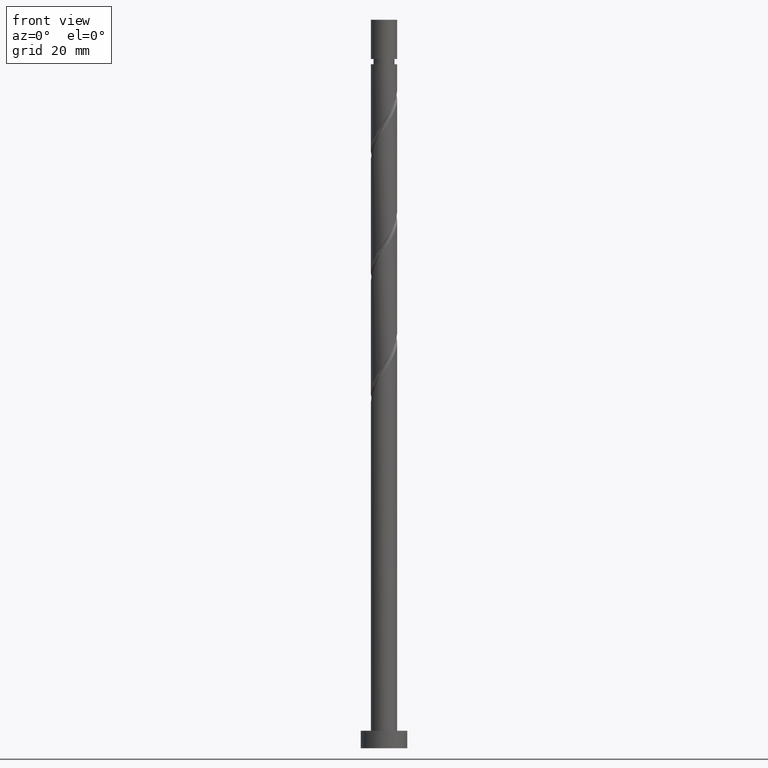
[diagram: clean part render]
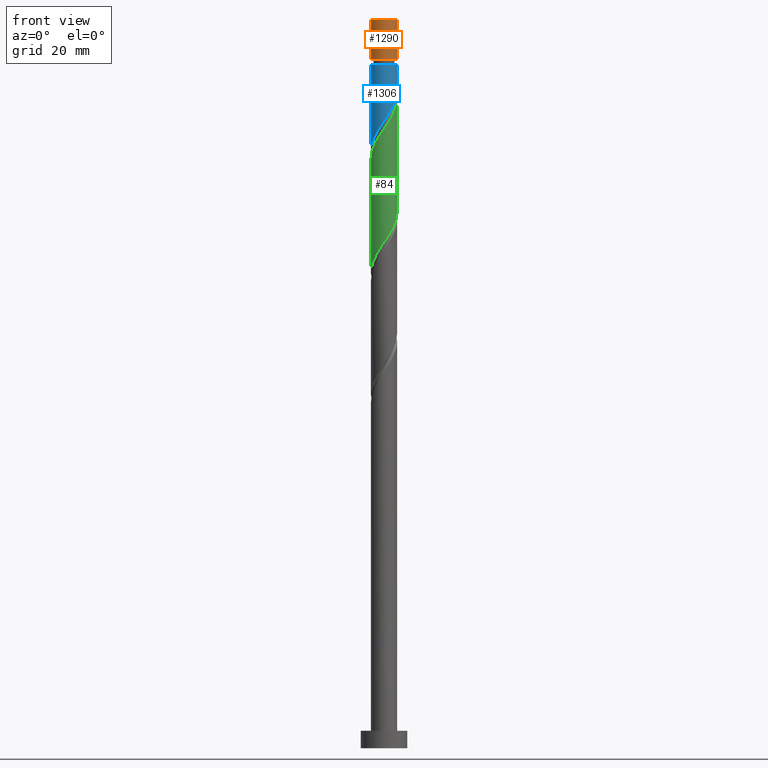
[diagram: same view with three faces highlighted in distinct colors, each labeled with its STEP entity id]
A machine part, front view with three faces highlighted in distinct colors.
Their STEP definitions:

[orange] entity #1290 — the highlighted cylindrical surface (edge-blend (fillet) strip) has radius 2.25 mm, axis along (-0, -0, -1).
#5 = AXIS2_PLACEMENT_3D ( 'NONE', #1487, #390, #1350 ) ;
#10 = VERTEX_POINT ( 'NONE', #85 ) ;
#19 = EDGE_LOOP ( 'NONE', ( #1374, #387, #546, #702 ) ) ;
#36 = FACE_OUTER_BOUND ( 'NONE', #19, .T. ) ;
#69 = CARTESIAN_POINT ( 'NONE',  ( 2.250000000000000000, 2.755455298081543792E-16, 125.0000000000000000 ) ) ;
#85 = CARTESIAN_POINT ( 'NONE',  ( -2.249999999999997780, 0.000000000000000000, 118.2758386792968253 ) ) ;
#191 = CARTESIAN_POINT ( 'NONE',  ( -2.250000000000000000, 0.000000000000000000, 125.0000000000000000 ) ) ;
#212 = VECTOR ( 'NONE', #1291, 1000.000000000000000 ) ;
#235 = VERTEX_POINT ( 'NONE', #974 ) ;
#301 = DIRECTION ( 'NONE',  ( -0.000000000000000000, -0.000000000000000000, -1.000000000000000000 ) ) ;
#312 = LINE ( 'NONE', #69, #212 ) ;
#381 = CARTESIAN_POINT ( 'NONE',  ( -2.250000000000000000, 0.000000000000000000, 125.0000000000000000 ) ) ;
#387 = ORIENTED_EDGE ( 'NONE', *, *, #551, .F. ) ;
#390 = DIRECTION ( 'NONE',  ( -0.000000000000000000, -0.000000000000000000, -1.000000000000000000 ) ) ;
#430 = CARTESIAN_POINT ( 'NONE',  ( 0.000000000000000000, 0.000000000000000000, 125.0000000000000000 ) ) ;
#434 = VECTOR ( 'NONE', #865, 1000.000000000000000 ) ;
#546 = ORIENTED_EDGE ( 'NONE', *, *, #1168, .T. ) ;
#551 = EDGE_CURVE ( 'NONE', #1295, #235, #830, .T. ) ;
#578 = CARTESIAN_POINT ( 'NONE',  ( 2.249999999999997780, 2.755455298081542806E-16, 118.2758386792968253 ) ) ;
#635 = CARTESIAN_POINT ( 'NONE',  ( 0.000000000000000000, 0.000000000000000000, 125.0000000000000000 ) ) ;
#689 = EDGE_CURVE ( 'NONE', #235, #845, #312, .T. ) ;
#702 = ORIENTED_EDGE ( 'NONE', *, *, #1210, .F. ) ;
#720 = LINE ( 'NONE', #381, #434 ) ;
#830 = CIRCLE ( 'NONE', #1505, 2.250000000000000000 ) ;
#845 = VERTEX_POINT ( 'NONE', #578 ) ;
#865 = DIRECTION ( 'NONE',  ( -0.000000000000000000, -0.000000000000000000, -1.000000000000000000 ) ) ;
#908 = DIRECTION ( 'NONE',  ( -1.000000000000000000, 0.000000000000000000, 0.000000000000000000 ) ) ;
#974 = CARTESIAN_POINT ( 'NONE',  ( 2.250000000000000000, 2.755455298081543792E-16, 125.0000000000000000 ) ) ;
#1093 = DIRECTION ( 'NONE',  ( 1.000000000000000000, 0.000000000000000000, 0.000000000000000000 ) ) ;
#1168 = EDGE_CURVE ( 'NONE', #1295, #10, #720, .T. ) ;
#1210 = EDGE_CURVE ( 'NONE', #845, #10, #1323, .T. ) ;
#1290 = ADVANCED_FACE ( 'NONE', ( #36 ), #1493, .T. ) ;
#1291 = DIRECTION ( 'NONE',  ( -0.000000000000000000, -0.000000000000000000, -1.000000000000000000 ) ) ;
#1295 = VERTEX_POINT ( 'NONE', #191 ) ;
#1323 = CIRCLE ( 'NONE', #5, 2.249999999999997780 ) ;
#1346 = DIRECTION ( 'NONE',  ( 0.000000000000000000, 0.000000000000000000, 1.000000000000000000 ) ) ;
#1350 = DIRECTION ( 'NONE',  ( -1.000000000000000000, 0.000000000000000000, 0.000000000000000000 ) ) ;
#1374 = ORIENTED_EDGE ( 'NONE', *, *, #689, .F. ) ;
#1406 = AXIS2_PLACEMENT_3D ( 'NONE', #430, #301, #908 ) ;
#1487 = CARTESIAN_POINT ( 'NONE',  ( 0.000000000000000000, 0.000000000000000000, 118.2758386792968253 ) ) ;
#1493 = CYLINDRICAL_SURFACE ( 'NONE', #1406, 2.250000000000000000 ) ;
#1505 = AXIS2_PLACEMENT_3D ( 'NONE', #635, #1346, #1093 ) ;

[blue] entity #1306 — the highlighted cylindrical surface (edge-blend (fillet) strip) has radius 2.25 mm, axis along (-0, -0, -1).
#11 = EDGE_CURVE ( 'NONE', #1232, #915, #1538, .T. ) ;
#53 = CARTESIAN_POINT ( 'NONE',  ( 1.520704948810357671, -1.658299266918875858, 110.0841720126301482 ) ) ;
#102 = CARTESIAN_POINT ( 'NONE',  ( -2.249999999999998668, -1.454330969970965511E-15, 102.4156411207671056 ) ) ;
#157 = EDGE_CURVE ( 'NONE', #1175, #528, #989, .T. ) ;
#183 = CARTESIAN_POINT ( 'NONE',  ( -2.249999999999998668, -0.1281909092544759599, 102.6051522099743920 ) ) ;
#189 = AXIS2_PLACEMENT_3D ( 'NONE', #749, #1247, #1388 ) ;
#193 = CARTESIAN_POINT ( 'NONE',  ( 1.783353750091892564, -1.417443264702794803, 110.6050053459634768 ) ) ;
#222 = VECTOR ( 'NONE', #293, 1000.000000000000000 ) ;
#242 = EDGE_CURVE ( 'NONE', #1175, #1232, #1012, .T. ) ;
#267 = CARTESIAN_POINT ( 'NONE',  ( 2.249999999999998668, 1.124482708740437219E-15, 112.8323077874337486 ) ) ;
#281 = CARTESIAN_POINT ( 'NONE',  ( -1.107212651158188343, -1.958719006165828169, 105.9175053459634768 ) ) ;
#293 = DIRECTION ( 'NONE',  ( -0.000000000000000000, -0.000000000000000000, -1.000000000000000000 ) ) ;
#336 = DIRECTION ( 'NONE',  ( -1.000000000000000000, 0.000000000000000000, 0.000000000000000000 ) ) ;
#365 = DIRECTION ( 'NONE',  ( -0.000000000000000000, -0.000000000000000000, -1.000000000000000000 ) ) ;
#371 = CARTESIAN_POINT ( 'NONE',  ( 2.250000000000000000, 2.755455298081543792E-16, 125.0000000000000000 ) ) ;
#378 = ORIENTED_EDGE ( 'NONE', *, *, #705, .F. ) ;
#402 = CARTESIAN_POINT ( 'NONE',  ( 2.249999999999998668, 1.124482708740437021E-15, 112.8323077874337486 ) ) ;
#528 = VERTEX_POINT ( 'NONE', #267 ) ;
#542 = CARTESIAN_POINT ( 'NONE',  ( 1.258056147528822777, -1.899155269134957136, 109.5633386792967912 ) ) ;
#559 = CARTESIAN_POINT ( 'NONE',  ( 1.958719006165828169, -1.107212651158188566, 111.1258386792967912 ) ) ;
#627 =( BOUNDED_CURVE ( )  B_SPLINE_CURVE ( 2, ( #402, #779, #649, #665, #559, #193, #53, #542, #1016, #885, #1140, #786, #1042, #1378, #281, #672, #1270, #1027, #1526, #894, #771, #183, #1155 ),
 .UNSPECIFIED., .F., .T. ) 
 B_SPLINE_CURVE_WITH_KNOTS ( ( 3, 2, 2, 2, 2, 2, 2, 2, 2, 2, 2, 3 ),
 ( 0.3045322023138551382, 0.3125000000000000000, 0.3250000000000000111, 0.3375000000000000222, 0.3499999999999999778, 0.3624999999999999889, 0.3750000000000000000, 0.3875000000000000111, 0.4000000000000000222, 0.4124999999999999778, 0.4249999999999999889, 0.4295322023138550827 ),
 .UNSPECIFIED. ) 
 CURVE ( )  GEOMETRIC_REPRESENTATION_ITEM ( )  RATIONAL_B_SPLINE_CURVE ( ( 0.9039174447099334042, 0.9019565955404627022, 0.9090909090909110590, 0.8978984914501272341, 0.9090909090909110590, 0.8978984914501272341, 0.9090909090909110590, 0.8978984914501272341, 0.9090909090909110590, 0.8978984914501272341, 0.9090909090909110590, 0.8978984914501272341, 0.9090909090909110590, 0.8978984914501272341, 0.9090909090909110590, 0.8978984914501272341, 0.9090909090909110590, 0.8978984914501272341, 0.9090909090909110590, 0.8978984914501272341, 0.9090909090909110590, 0.9050328050005755909, 0.9039174447099334042 ) ) 
 REPRESENTATION_ITEM ( '' )  );
#649 = CARTESIAN_POINT ( 'NONE',  ( 2.204999999999998295, -0.4477443466979794118, 112.1675053459634910 ) ) ;
#665 = CARTESIAN_POINT ( 'NONE',  ( 2.134084262239763774, -0.7969820376135816620, 111.6466720126301482 ) ) ;
#672 = CARTESIAN_POINT ( 'NONE',  ( -1.417443264702794803, -1.783353750091892564, 105.3966720126301482 ) ) ;
#701 = ORIENTED_EDGE ( 'NONE', *, *, #157, .F. ) ;
#705 = EDGE_CURVE ( 'NONE', #528, #915, #627, .T. ) ;
#714 = ORIENTED_EDGE ( 'NONE', *, *, #242, .T. ) ;
#748 = ORIENTED_EDGE ( 'NONE', *, *, #11, .T. ) ;
#749 = CARTESIAN_POINT ( 'NONE',  ( 0.000000000000000000, 0.000000000000000000, 125.0000000000000000 ) ) ;
#771 = CARTESIAN_POINT ( 'NONE',  ( -2.235440230695796782, -0.2555522940353290862, 102.7925053459634910 ) ) ;
#779 = CARTESIAN_POINT ( 'NONE',  ( 2.249999999999998668, -0.2261335084333223611, 112.4980032120258926 ) ) ;
#786 = CARTESIAN_POINT ( 'NONE',  ( -0.09850665578237696729, -2.275915737760233259, 107.4800053459634626 ) ) ;
#834 = CARTESIAN_POINT ( 'NONE',  ( 2.249999999999997780, 2.755455298081542806E-16, 117.3758386792968196 ) ) ;
#880 = DIRECTION ( 'NONE',  ( -0.000000000000000000, -0.000000000000000000, -1.000000000000000000 ) ) ;
#885 = CARTESIAN_POINT ( 'NONE',  ( 0.6096112438530348898, -2.194964723631358972, 108.5216720126301482 ) ) ;
#894 = CARTESIAN_POINT ( 'NONE',  ( -2.194964723631358972, -0.6096112438530351119, 103.3133386792968054 ) ) ;
#915 = VERTEX_POINT ( 'NONE', #102 ) ;
#989 = LINE ( 'NONE', #371, #1547 ) ;
#1012 = CIRCLE ( 'NONE', #1213, 2.249999999999997780 ) ;
#1016 = CARTESIAN_POINT ( 'NONE',  ( 0.9338336956909286668, -2.047059996383158609, 109.0425053459634910 ) ) ;
#1027 = CARTESIAN_POINT ( 'NONE',  ( -1.899155269134956914, -1.258056147528822999, 104.3550053459634910 ) ) ;
#1039 = FACE_OUTER_BOUND ( 'NONE', #1088, .T. ) ;
#1042 = CARTESIAN_POINT ( 'NONE',  ( -0.4477443466979792452, -2.204999999999998295, 106.9591720126301482 ) ) ;
#1083 = CARTESIAN_POINT ( 'NONE',  ( -2.249999999999997780, 0.000000000000000000, 117.3758386792968196 ) ) ;
#1088 = EDGE_LOOP ( 'NONE', ( #701, #714, #748, #378 ) ) ;
#1140 = CARTESIAN_POINT ( 'NONE',  ( 0.2555522940353289751, -2.235440230695796782, 108.0008386792968338 ) ) ;
#1155 = CARTESIAN_POINT ( 'NONE',  ( -2.249999999999998668, -1.454330969970965709E-15, 102.4156411207671056 ) ) ;
#1175 = VERTEX_POINT ( 'NONE', #834 ) ;
#1213 = AXIS2_PLACEMENT_3D ( 'NONE', #1462, #365, #336 ) ;
#1232 = VERTEX_POINT ( 'NONE', #1083 ) ;
#1247 = DIRECTION ( 'NONE',  ( -0.000000000000000000, -0.000000000000000000, -1.000000000000000000 ) ) ;
#1270 = CARTESIAN_POINT ( 'NONE',  ( -1.658299266918875858, -1.520704948810357671, 104.8758386792968196 ) ) ;
#1306 = ADVANCED_FACE ( 'NONE', ( #1039 ), #1523, .T. ) ;
#1378 = CARTESIAN_POINT ( 'NONE',  ( -0.7969820376135815509, -2.134084262239763774, 106.4383386792968196 ) ) ;
#1386 = CARTESIAN_POINT ( 'NONE',  ( -2.250000000000000000, 0.000000000000000000, 125.0000000000000000 ) ) ;
#1388 = DIRECTION ( 'NONE',  ( -1.000000000000000000, 0.000000000000000000, 0.000000000000000000 ) ) ;
#1462 = CARTESIAN_POINT ( 'NONE',  ( 0.000000000000000000, 0.000000000000000000, 117.3758386792968196 ) ) ;
#1523 = CYLINDRICAL_SURFACE ( 'NONE', #189, 2.250000000000000000 ) ;
#1526 = CARTESIAN_POINT ( 'NONE',  ( -2.047059996383158609, -0.9338336956909286668, 103.8341720126301482 ) ) ;
#1538 = LINE ( 'NONE', #1386, #222 ) ;
#1547 = VECTOR ( 'NONE', #880, 1000.000000000000000 ) ;

[green] entity #84 — the highlighted cylindrical surface (edge-blend (fillet) strip) has radius 2.25 mm, axis along (-0, -0, -1).
#2 = CYLINDRICAL_SURFACE ( 'NONE', #956, 2.250000000000000000 ) ;
#66 = ORIENTED_EDGE ( 'NONE', *, *, #1420, .F. ) ;
#84 = ADVANCED_FACE ( 'NONE', ( #1333 ), #2, .T. ) ;
#89 = CARTESIAN_POINT ( 'NONE',  ( -2.205000000000003180, -0.4477443466979792452, 101.7508386792968480 ) ) ;
#94 = LINE ( 'NONE', #563, #1230 ) ;
#97 = CARTESIAN_POINT ( 'NONE',  ( -0.09850665578237696729, -2.275915737760233259, 86.64667201263014817 ) ) ;
#113 = CARTESIAN_POINT ( 'NONE',  ( -1.107212651158188343, -1.958719006165828169, 85.08417201263014817 ) ) ;
#178 = EDGE_CURVE ( 'NONE', #1246, #688, #472, .T. ) ;
#218 = CARTESIAN_POINT ( 'NONE',  ( -2.250000000000000000, 0.000000000000000000, 125.0000000000000000 ) ) ;
#227 = CARTESIAN_POINT ( 'NONE',  ( -2.249999999999998668, 2.863682631592314102E-15, 81.58230778743374856 ) ) ;
#263 = CARTESIAN_POINT ( 'NONE',  ( 1.899155269134960689, -1.258056147528826552, 109.5633386792968196 ) ) ;
#325 = CARTESIAN_POINT ( 'NONE',  ( -0.9338336956909318864, -2.047059996383161717, 104.8758386792968480 ) ) ;
#327 = CARTESIAN_POINT ( 'NONE',  ( 0.6096112438530348898, -2.194964723631358972, 87.68833867929680537 ) ) ;
#332 = CARTESIAN_POINT ( 'NONE',  ( 1.107212651158189676, -1.958719006165832832, 108.0008386792968622 ) ) ;
#334 = CARTESIAN_POINT ( 'NONE',  ( 1.958719006165828169, -1.107212651158188566, 90.29250534596347677 ) ) ;
#445 = CARTESIAN_POINT ( 'NONE',  ( 0.9338336956909286668, -2.047059996383158609, 88.20917201263016238 ) ) ;
#449 = CARTESIAN_POINT ( 'NONE',  ( -1.258056147528825885, -1.899155269134960244, 104.3550053459634626 ) ) ;
#466 = DIRECTION ( 'NONE',  ( -0.000000000000000000, -0.000000000000000000, -1.000000000000000000 ) ) ;
#469 = CARTESIAN_POINT ( 'NONE',  ( -0.4477443466979792452, -2.204999999999998295, 86.12583867929683379 ) ) ;
#472 =( BOUNDED_CURVE ( )  B_SPLINE_CURVE ( 2, ( #1280, #557, #1041, #1072, #334, #1426, #1058, #1559, #445, #327, #1187, #97, #469, #1439, #113, #1566, #475, #958, #1328, #799, #1560, #482, #227 ),
 .UNSPECIFIED., .F., .T. ) 
 B_SPLINE_CURVE_WITH_KNOTS ( ( 3, 2, 2, 2, 2, 2, 2, 2, 2, 2, 2, 3 ),
 ( 0.5545322023138552492, 0.5625000000000000000, 0.5749999999999999556, 0.5875000000000000222, 0.5999999999999999778, 0.6125000000000000444, 0.6250000000000000000, 0.6374999999999999556, 0.6500000000000000222, 0.6624999999999999778, 0.6750000000000000444, 0.6795322023138552492 ),
 .UNSPECIFIED. ) 
 CURVE ( )  GEOMETRIC_REPRESENTATION_ITEM ( )  RATIONAL_B_SPLINE_CURVE ( ( 0.9039174447099332932, 0.9019565955404627022, 0.9090909090909110590, 0.8978984914501272341, 0.9090909090909110590, 0.8978984914501272341, 0.9090909090909110590, 0.8978984914501272341, 0.9090909090909110590, 0.8978984914501272341, 0.9090909090909110590, 0.8978984914501272341, 0.9090909090909110590, 0.8978984914501272341, 0.9090909090909110590, 0.8978984914501272341, 0.9090909090909110590, 0.8978984914501272341, 0.9090909090909110590, 0.8978984914501272341, 0.9090909090909110590, 0.9050328050005754799, 0.9039174447099332932 ) ) 
 REPRESENTATION_ITEM ( '' )  );
#475 = CARTESIAN_POINT ( 'NONE',  ( -1.658299266918875858, -1.520704948810357671, 84.04250534596347677 ) ) ;
#482 = CARTESIAN_POINT ( 'NONE',  ( -2.249999999999999112, -0.1281909092544722684, 81.77181887664103499 ) ) ;
#497 = CARTESIAN_POINT ( 'NONE',  ( 2.047059996383161717, -0.9338336956909318864, 110.0841720126301482 ) ) ;
#557 = CARTESIAN_POINT ( 'NONE',  ( 2.249999999999998668, -0.2261335084333245260, 91.66466987869257821 ) ) ;
#563 = CARTESIAN_POINT ( 'NONE',  ( 2.250000000000000000, 2.755455298081543792E-16, 125.0000000000000000 ) ) ;
#601 = CARTESIAN_POINT ( 'NONE',  ( 1.658299266918878523, -1.520704948810361445, 109.0425053459635052 ) ) ;
#688 = VERTEX_POINT ( 'NONE', #1390 ) ;
#696 = DIRECTION ( 'NONE',  ( -0.000000000000000000, -0.000000000000000000, -1.000000000000000000 ) ) ;
#732 = CARTESIAN_POINT ( 'NONE',  ( 2.235440230695800778, -0.2555522940353305295, 111.1258386792968196 ) ) ;
#799 = CARTESIAN_POINT ( 'NONE',  ( -2.194964723631358972, -0.6096112438530351119, 82.48000534596347677 ) ) ;
#804 = DIRECTION ( 'NONE',  ( -0.000000000000000000, -0.000000000000000000, -1.000000000000000000 ) ) ;
#815 = CARTESIAN_POINT ( 'NONE',  ( 1.417443264702797023, -1.783353750091897227, 108.5216720126301624 ) ) ;
#847 = EDGE_CURVE ( 'NONE', #1109, #688, #1534, .T. ) ;
#875 = CARTESIAN_POINT ( 'NONE',  ( -2.250000000000003109, -1.004537886474782302E-15, 101.0860362378265620 ) ) ;
#928 = CARTESIAN_POINT ( 'NONE',  ( 0.09850665578237610687, -2.275915737760237256, 106.4383386792968196 ) ) ;
#942 = CARTESIAN_POINT ( 'NONE',  ( -0.2555522940353304184, -2.235440230695800778, 105.9175053459634910 ) ) ;
#955 = CARTESIAN_POINT ( 'NONE',  ( -2.134084262239768659, -0.7969820376135821061, 102.2716720126301482 ) ) ;
#956 = AXIS2_PLACEMENT_3D ( 'NONE', #1554, #466, #1421 ) ;
#958 = CARTESIAN_POINT ( 'NONE',  ( -1.899155269134956914, -1.258056147528822999, 83.52167201263013396 ) ) ;
#972 = CARTESIAN_POINT ( 'NONE',  ( 2.250000000000002220, 7.196689335938738877E-16, 111.5027029044932334 ) ) ;
#1021 = VECTOR ( 'NONE', #696, 1000.000000000000000 ) ;
#1026 = EDGE_CURVE ( 'NONE', #1109, #1081, #1289, .T. ) ;
#1041 = CARTESIAN_POINT ( 'NONE',  ( 2.204999999999998295, -0.4477443466979794118, 91.33417201263014817 ) ) ;
#1047 = ORIENTED_EDGE ( 'NONE', *, *, #847, .T. ) ;
#1050 = CARTESIAN_POINT ( 'NONE',  ( -0.6096112438530371103, -2.194964723631363412, 105.3966720126301766 ) ) ;
#1058 = CARTESIAN_POINT ( 'NONE',  ( 1.520704948810357671, -1.658299266918875858, 89.25083867929680537 ) ) ;
#1072 = CARTESIAN_POINT ( 'NONE',  ( 2.134084262239763774, -0.7969820376135816620, 90.81333867929680537 ) ) ;
#1075 = CARTESIAN_POINT ( 'NONE',  ( -2.250000000000003109, -1.004537886474782302E-15, 101.0860362378265620 ) ) ;
#1081 = VERTEX_POINT ( 'NONE', #972 ) ;
#1100 = CARTESIAN_POINT ( 'NONE',  ( 2.250000000000002220, 7.196689335938737890E-16, 111.5027029044932476 ) ) ;
#1109 = VERTEX_POINT ( 'NONE', #875 ) ;
#1187 = CARTESIAN_POINT ( 'NONE',  ( 0.2555522940353289751, -2.235440230695796782, 87.16750534596349098 ) ) ;
#1190 = ORIENTED_EDGE ( 'NONE', *, *, #178, .F. ) ;
#1222 = EDGE_LOOP ( 'NONE', ( #66, #1286, #1047, #1190 ) ) ;
#1230 = VECTOR ( 'NONE', #804, 1000.000000000000000 ) ;
#1233 = CARTESIAN_POINT ( 'NONE',  ( 2.250000000000003109, -0.1281909092544703255, 111.3131918152859896 ) ) ;
#1246 = VERTEX_POINT ( 'NONE', #1572 ) ;
#1280 = CARTESIAN_POINT ( 'NONE',  ( 2.249999999999998224, 3.118565378906812879E-15, 91.99897445410041996 ) ) ;
#1286 = ORIENTED_EDGE ( 'NONE', *, *, #1026, .F. ) ;
#1289 =( BOUNDED_CURVE ( )  B_SPLINE_CURVE ( 2, ( #1075, #1564, #89, #955, #1443, #1433, #1325, #449, #325, #1050, #942, #928, #1416, #1308, #332, #815, #601, #263, #497, #1369, #732, #1233, #1100 ),
 .UNSPECIFIED., .F., .T. ) 
 B_SPLINE_CURVE_WITH_KNOTS ( ( 3, 2, 2, 2, 2, 2, 2, 2, 2, 2, 2, 3 ),
 ( 0.5545322023138551382, 0.5625000000000000000, 0.5749999999999999556, 0.5875000000000000222, 0.5999999999999999778, 0.6125000000000000444, 0.6250000000000000000, 0.6374999999999999556, 0.6500000000000000222, 0.6624999999999999778, 0.6750000000000000444, 0.6795322023138553602 ),
 .UNSPECIFIED. ) 
 CURVE ( )  GEOMETRIC_REPRESENTATION_ITEM ( )  RATIONAL_B_SPLINE_CURVE ( ( 0.9039174447099409537, 0.9019565955404700297, 0.9090909090909186085, 0.8978984914501346726, 0.9090909090909186085, 0.8978984914501346726, 0.9090909090909186085, 0.8978984914501346726, 0.9090909090909186085, 0.8978984914501346726, 0.9090909090909186085, 0.8978984914501346726, 0.9090909090909186085, 0.8978984914501346726, 0.9090909090909186085, 0.8978984914501346726, 0.9090909090909186085, 0.8978984914501346726, 0.9090909090909186085, 0.8978984914501346726, 0.9090909090909186085, 0.9050328050005829184, 0.9039174447099408427 ) ) 
 REPRESENTATION_ITEM ( '' )  );
#1308 = CARTESIAN_POINT ( 'NONE',  ( 0.7969820376135819950, -2.134084262239768659, 107.4800053459635336 ) ) ;
#1325 = CARTESIAN_POINT ( 'NONE',  ( -1.520704948810361445, -1.658299266918878523, 103.8341720126301624 ) ) ;
#1328 = CARTESIAN_POINT ( 'NONE',  ( -2.047059996383158609, -0.9338336956909286668, 83.00083867929683379 ) ) ;
#1333 = FACE_OUTER_BOUND ( 'NONE', #1222, .T. ) ;
#1369 = CARTESIAN_POINT ( 'NONE',  ( 2.194964723631363412, -0.6096112438530371103, 110.6050053459635052 ) ) ;
#1390 = CARTESIAN_POINT ( 'NONE',  ( -2.249999999999998668, 2.863682631592314102E-15, 81.58230778743374856 ) ) ;
#1416 = CARTESIAN_POINT ( 'NONE',  ( 0.4477443466979791897, -2.205000000000003180, 106.9591720126301624 ) ) ;
#1420 = EDGE_CURVE ( 'NONE', #1081, #1246, #94, .T. ) ;
#1421 = DIRECTION ( 'NONE',  ( -1.000000000000000000, 0.000000000000000000, 0.000000000000000000 ) ) ;
#1426 = CARTESIAN_POINT ( 'NONE',  ( 1.783353750091892564, -1.417443264702794803, 89.77167201263011975 ) ) ;
#1433 = CARTESIAN_POINT ( 'NONE',  ( -1.783353750091896783, -1.417443264702797467, 103.3133386792968338 ) ) ;
#1439 = CARTESIAN_POINT ( 'NONE',  ( -0.7969820376135815509, -2.134084262239763774, 85.60500534596346256 ) ) ;
#1443 = CARTESIAN_POINT ( 'NONE',  ( -1.958719006165832832, -1.107212651158190120, 102.7925053459635052 ) ) ;
#1534 = LINE ( 'NONE', #218, #1021 ) ;
#1554 = CARTESIAN_POINT ( 'NONE',  ( 0.000000000000000000, 0.000000000000000000, 125.0000000000000000 ) ) ;
#1559 = CARTESIAN_POINT ( 'NONE',  ( 1.258056147528822777, -1.899155269134957136, 88.73000534596350519 ) ) ;
#1560 = CARTESIAN_POINT ( 'NONE',  ( -2.235440230695796782, -0.2555522940353290862, 81.95917201263016238 ) ) ;
#1564 = CARTESIAN_POINT ( 'NONE',  ( -2.250000000000003997, -0.2261335084333208623, 101.4203408132344180 ) ) ;
#1566 = CARTESIAN_POINT ( 'NONE',  ( -1.417443264702794803, -1.783353750091892564, 84.56333867929680537 ) ) ;
#1572 = CARTESIAN_POINT ( 'NONE',  ( 2.249999999999998224, 3.118565378906812879E-15, 91.99897445410041996 ) ) ;